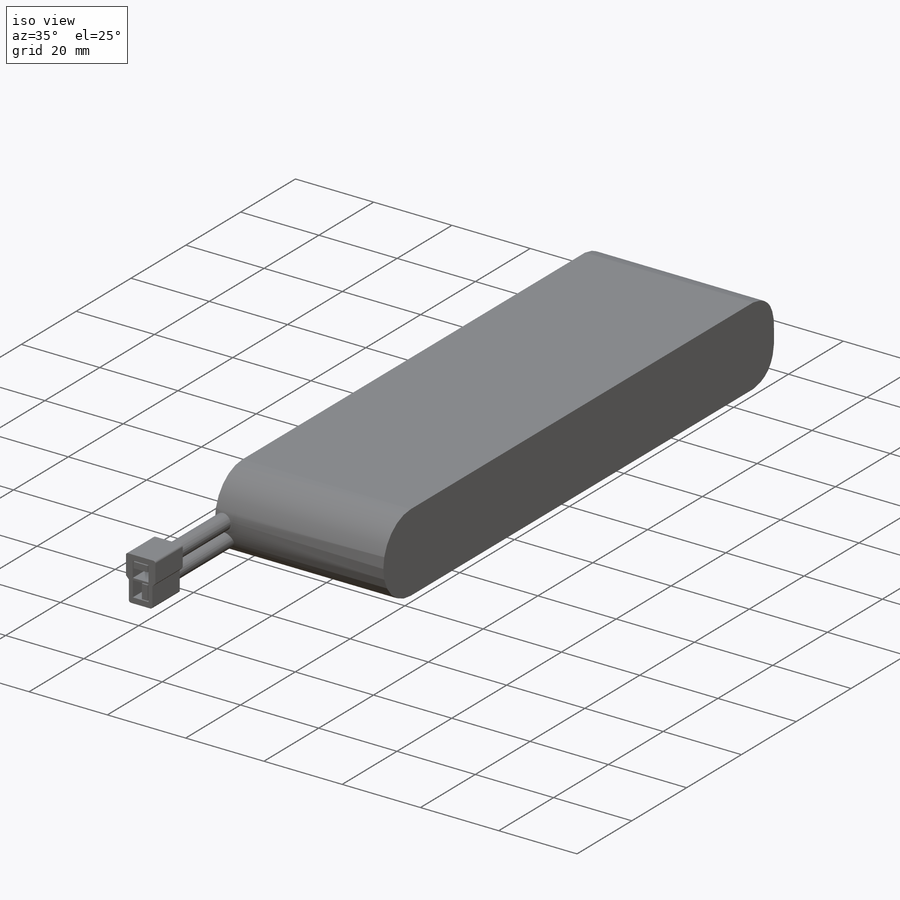
[diagram: iso view]
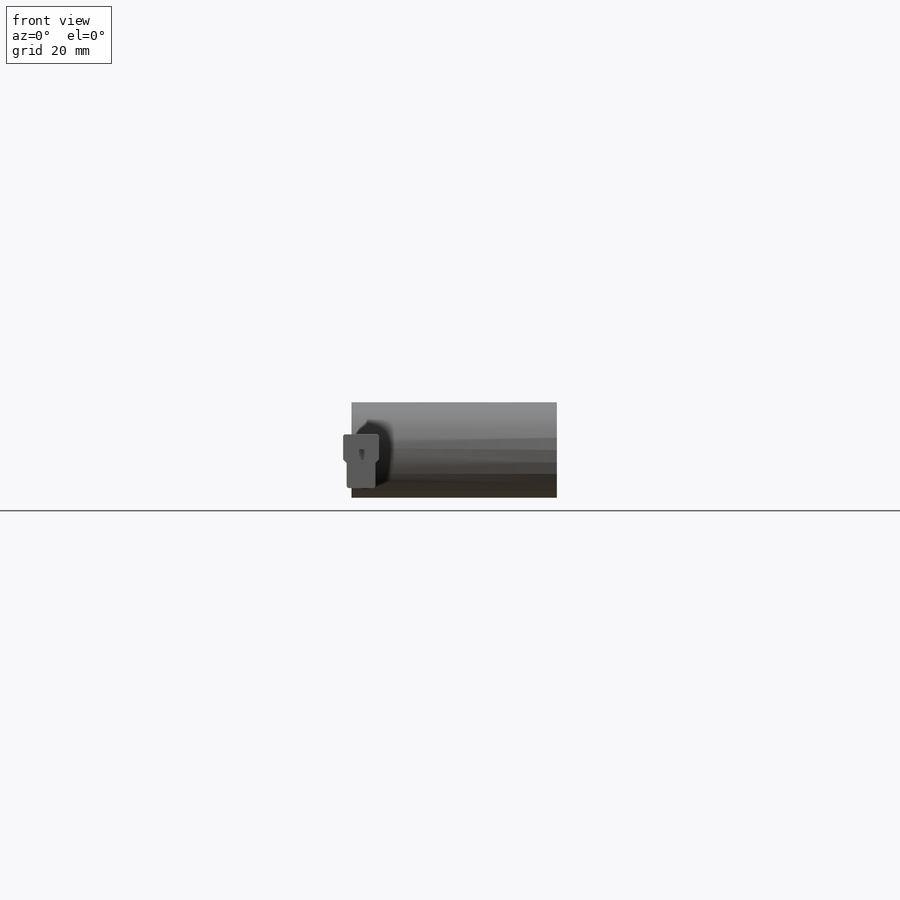
[diagram: front view]
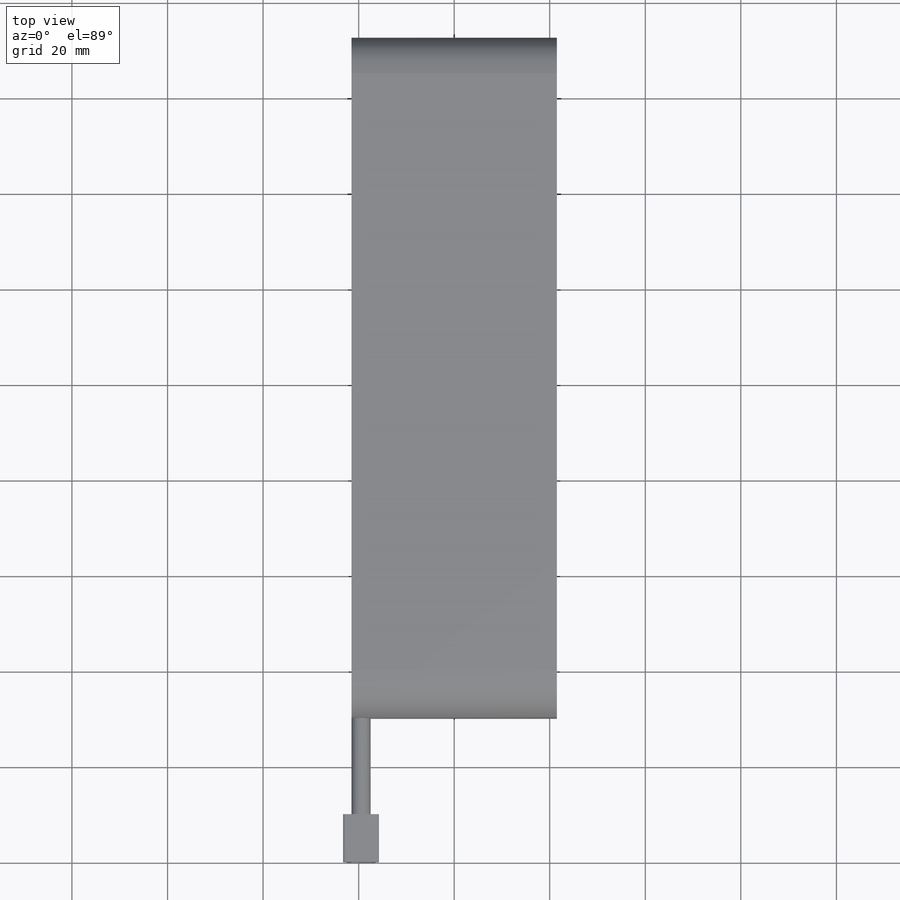
[diagram: top view]
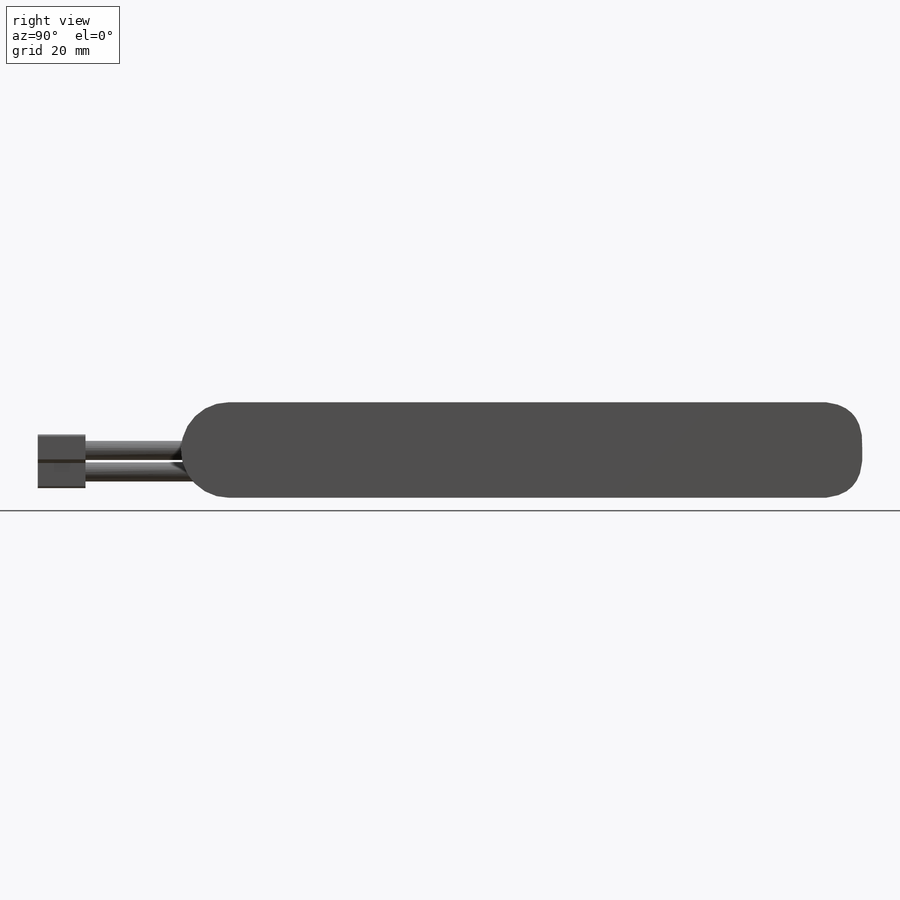
[diagram: right view]
SOLIDWORKS PART (.sldprt)
format: sldprt  version: not decoded by parser v0  size: 373,760 bytes
history: native  units: mm
features: sketch x5, extrude x4, material x1, plane x1, cut_extrude x1 (+11 scaffold rows collapsed)
feature tree (23):
  scaffold x11  (default folders/planes/origin — collapsed)
  material  "Material <not specified>"
  sketch  "Sketch1"  dims[D1=125.0mm D2=20.0mm]
  extrude  "Boss-Extrude1"  Depth=43mm
  plane  "Plane1"  Offset=30mm
  sketch  "Sketch2"  dims[D1=4.0mm D2=4.5mm]
  extrude  "Boss-Extrude2"  [1 undecoded]
  sketch  "Sketch3"  dims[c1.D5=0.5mm c1.D1=7.5mm c1.D2=6.0mm c1.D3=5.0mm c1.D4=0.5mm c2.D1=7.5mm c2.D3=5.0mm c2.D4=0.75mm c3.D4=225.0deg c3.D5=~1.06066mm c3.D3=6.0mm c3.D6=6.0mm]
  extrude  "Boss-Extrude3"  Depth=10mm
  sketch  "Sketch4"
  cut_extrude  "Cut-Extrude1"  Depth=5mm
  sketch  "Sketch5"  dims[D1=0.2mm D2=0.2mm D3=0.2mm D4=0.2mm D5=0.2mm D6=1.5mm D7=0.2mm]
  extrude  "Boss-Extrude4"  [1 undecoded]
decode coverage: 7 of 10 modeling features carry decoded parameters
note: ~ marks probable driven/reference dimensions
note: 2 parameter values undecoded
note: suppression state not decoded; provenance and decode notes live in map.json
